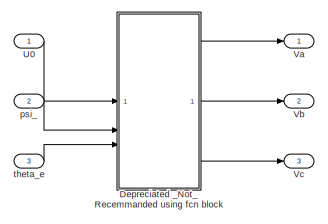
[diagram: root canvas - part 1/2, top left region]
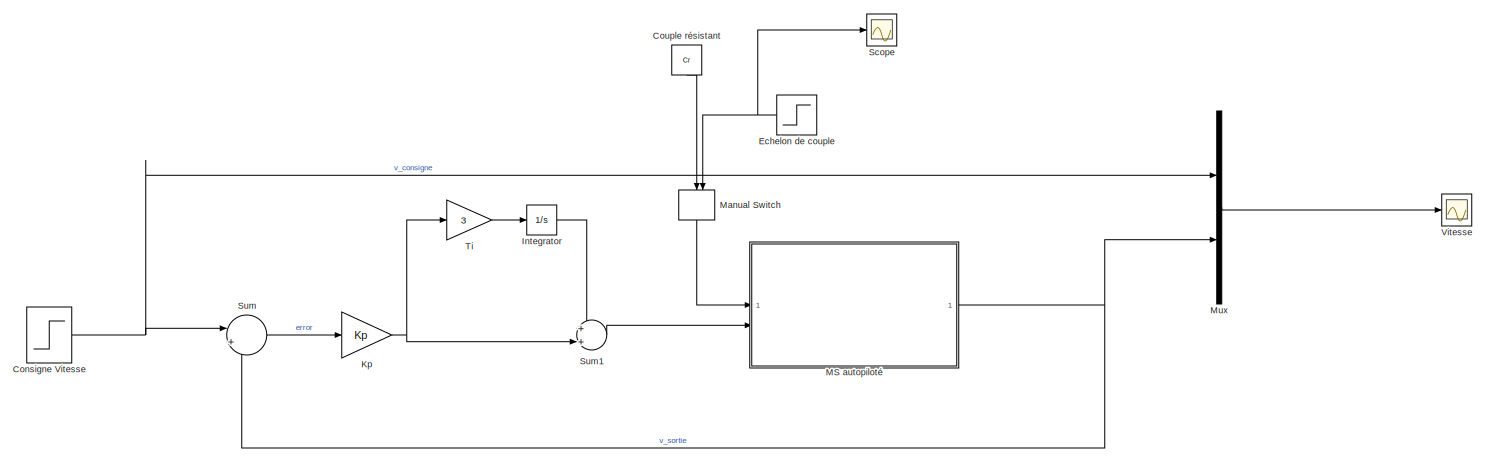
[diagram: root canvas - part 2/2, full width, bottom band]
MODEL mdl_564d1e37f7e7
KIND model
CONFIG AbsTol = auto
CONFIG EnableMultiTasking = off
CONFIG FixedStep = auto
CONFIG InitFcn = U0 = 220;\nphy = pi/4;\n\nR = 0.895;\nL0 = 12.16e-3;\nJ = 0.2;\nK = 0.9;\np = 3;\nphi_f = K/p;
CONFIG MaxStep = auto
CONFIG MinStep = auto
CONFIG RelTol = 1e-3
CONFIG SampleTimeConstraint = Unconstrained
CONFIG SolverName = VariableStepAuto
CONFIG StartFcn = TP3_config
CONFIG StartTime = 0.0
CONFIG StopTime = 5
BLOCK [Step] Consigne Vitesse
  After = 100
  SampleTime = 0
BLOCK [Constant] Couple résistant
  NameLocation = left
  Value = Cr
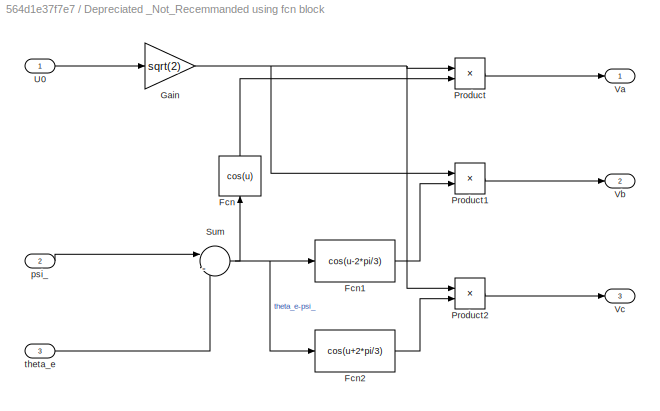
BLOCK [SubSystem] Depreciated _Not_Recemmanded using fcn block
BLOCK [Fcn] Depreciated _Not_Recemmanded using fcn block/Fcn
  Expr = cos(u)
  NameLocation = right
BLOCK [Fcn] Depreciated _Not_Recemmanded using fcn block/Fcn1
  Expr = cos(u-2*pi/3)
BLOCK [Fcn] Depreciated _Not_Recemmanded using fcn block/Fcn2
  Expr = cos(u+2*pi/3)
BLOCK [Gain] Depreciated _Not_Recemmanded using fcn block/Gain
  Gain = sqrt(2)
BLOCK [Product] Depreciated _Not_Recemmanded using fcn block/Product
BLOCK [Product] Depreciated _Not_Recemmanded using fcn block/Product1
BLOCK [Product] Depreciated _Not_Recemmanded using fcn block/Product2
BLOCK [Sum] Depreciated _Not_Recemmanded using fcn block/Sum
  Inputs = |-+
BLOCK [Inport] Depreciated _Not_Recemmanded using fcn block/U0
BLOCK [Outport] Depreciated _Not_Recemmanded using fcn block/Va
BLOCK [Outport] Depreciated _Not_Recemmanded using fcn block/Vb
  Port = 2
BLOCK [Outport] Depreciated _Not_Recemmanded using fcn block/Vc
  Port = 3
BLOCK [Inport] Depreciated _Not_Recemmanded using fcn block/psi_
  Port = 2
BLOCK [Inport] Depreciated _Not_Recemmanded using fcn block/theta_e
  Port = 3
BLOCK [Step] Echelon de couple
  After = 40
  NameLocation = top
  SampleTime = 0
  Time = 3
BLOCK [Integrator] Integrator
BLOCK [Gain] Kp
  Gain = Kp
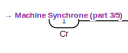
[diagram: MS autopiloté - part 1/5, top left region]
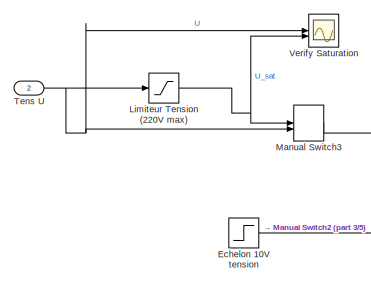
[diagram: MS autopiloté - part 2/5, middle left region]
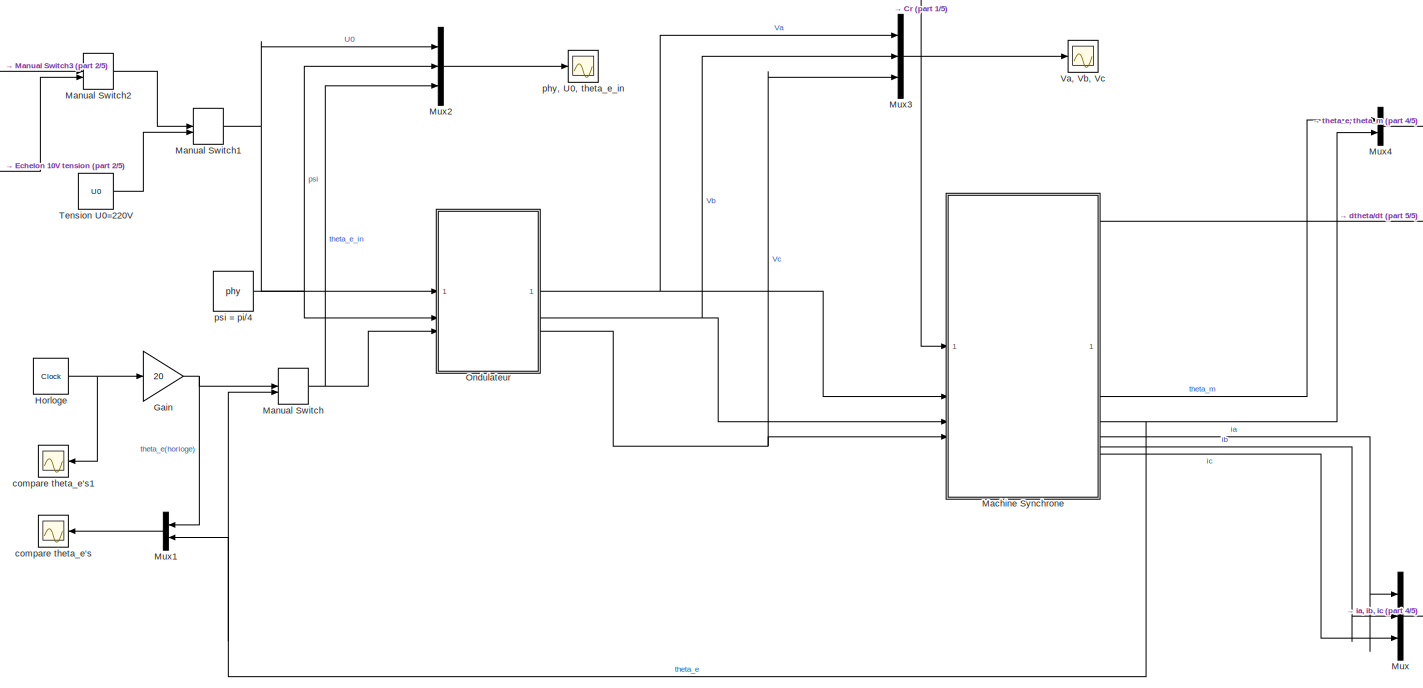
[diagram: MS autopiloté - part 3/5, center side, full height]
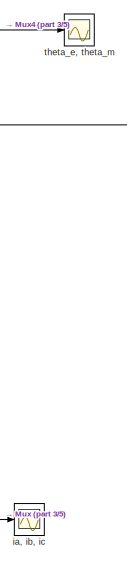
[diagram: MS autopiloté - part 4/5, middle right region]
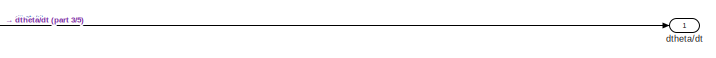
[diagram: MS autopiloté - part 5/5, middle right region]
BLOCK [SubSystem] MS autopiloté
BLOCK [Inport] MS autopiloté/Cr
BLOCK [Step] MS autopiloté/Echelon 10V tension
  After = 10
  SampleTime = 0
  Time = 0
BLOCK [Gain] MS autopiloté/Gain
  Gain = 20
BLOCK [Clock] MS autopiloté/Horloge
  DisplayTime = on
BLOCK [Saturate] MS autopiloté/Limiteur Tension (220V max)
  LowerLimit = -220
  UpperLimit = 220
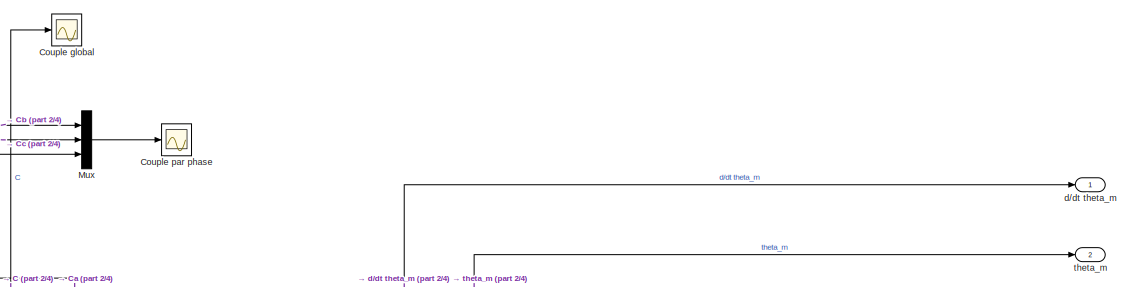
[diagram: MS autopiloté/Machine Synchrone - part 1/4, top right region]
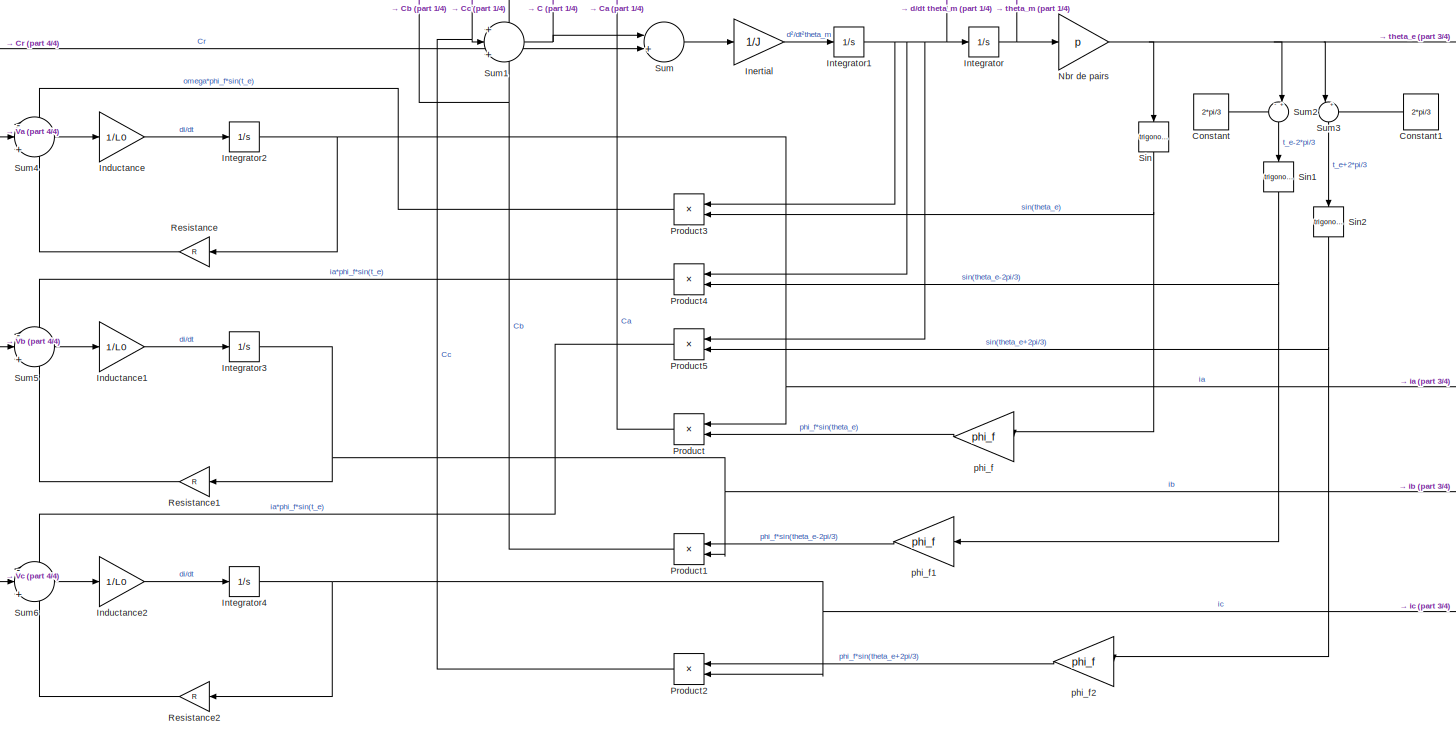
[diagram: MS autopiloté/Machine Synchrone - part 2/4, full width, middle band]
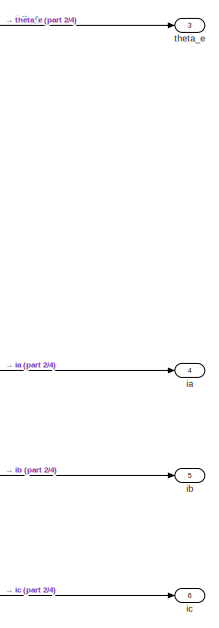
[diagram: MS autopiloté/Machine Synchrone - part 3/4, middle right region]
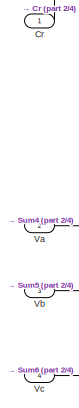
[diagram: MS autopiloté/Machine Synchrone - part 4/4, middle left region]
BLOCK [SubSystem] MS autopiloté/Machine Synchrone
BLOCK [Constant] MS autopiloté/Machine Synchrone/Constant
  Value = 2*pi/3
BLOCK [Constant] MS autopiloté/Machine Synchrone/Constant1
  NameLocation = top
  Value = 2*pi/3
BLOCK [Scope] MS autopiloté/Machine Synchrone/Couple global
  Floating = off
  NumInputPorts = 1
  ScopeSpecificationString = Simulink.scopes.TimeScopeBlockCfg('CurrentConfiguration', extmgr.ConfigurationSet(extmgr.Configuration('Core','General UI',true),extmgr.Configuration('Core','Source UI',true),extmgr.Configuration('Sources','WiredSimulink',true,'DataLoggingVariableName','ScopeData7'),extmgr.Configuration('Visuals','Time Domain',true,'SerializedDisplays',{struct('MinYLimReal','-0.0754','MaxYLimReal','0.67761','YLabe...<+1358ch>
BLOCK [Scope] MS autopiloté/Machine Synchrone/Couple par phase
  Floating = off
  NumInputPorts = 1
  ScopeSpecificationString = Simulink.scopes.TimeScopeBlockCfg('CurrentConfiguration', extmgr.ConfigurationSet(extmgr.Configuration('Core','General UI',true),extmgr.Configuration('Core','Source UI',true),extmgr.Configuration('Sources','WiredSimulink',true,'DataLoggingVariableName','ScopeData8'),extmgr.Configuration('Visuals','Time Domain',true,'SerializedDisplays',{struct('MinYLimReal','-0.03798','MaxYLimReal','0.33965','YLab...<+1396ch>
BLOCK [Inport] MS autopiloté/Machine Synchrone/Cr
BLOCK [Gain] MS autopiloté/Machine Synchrone/Inductance
  Gain = 1/L0
BLOCK [Gain] MS autopiloté/Machine Synchrone/Inductance1
  Gain = 1/L0
BLOCK [Gain] MS autopiloté/Machine Synchrone/Inductance2
  Gain = 1/L0
BLOCK [Gain] MS autopiloté/Machine Synchrone/Inertial
  Gain = 1/J
BLOCK [Integrator] MS autopiloté/Machine Synchrone/Integrator
BLOCK [Integrator] MS autopiloté/Machine Synchrone/Integrator1
BLOCK [Integrator] MS autopiloté/Machine Synchrone/Integrator2
BLOCK [Integrator] MS autopiloté/Machine Synchrone/Integrator3
BLOCK [Integrator] MS autopiloté/Machine Synchrone/Integrator4
BLOCK [Mux] MS autopiloté/Machine Synchrone/Mux
  DisplayOption = bar
  Inputs = 3
BLOCK [Gain] MS autopiloté/Machine Synchrone/Nbr de pairs
  Gain = p
BLOCK [Product] MS autopiloté/Machine Synchrone/Product
  NameLocation = top
BLOCK [Product] MS autopiloté/Machine Synchrone/Product1
  NameLocation = top
BLOCK [Product] MS autopiloté/Machine Synchrone/Product2
  NameLocation = top
BLOCK [Product] MS autopiloté/Machine Synchrone/Product3
  NameLocation = top
BLOCK [Product] MS autopiloté/Machine Synchrone/Product4
  NameLocation = top
BLOCK [Product] MS autopiloté/Machine Synchrone/Product5
  NameLocation = top
BLOCK [Gain] MS autopiloté/Machine Synchrone/Resistance
  Gain = R
  NameLocation = top
BLOCK [Gain] MS autopiloté/Machine Synchrone/Resistance1
  Gain = R
  NameLocation = top
BLOCK [Gain] MS autopiloté/Machine Synchrone/Resistance2
  Gain = R
  NameLocation = top
BLOCK [Trigonometry] MS autopiloté/Machine Synchrone/Sin
  NameLocation = left
BLOCK [Trigonometry] MS autopiloté/Machine Synchrone/Sin1
  NameLocation = left
BLOCK [Trigonometry] MS autopiloté/Machine Synchrone/Sin2
  NameLocation = left
BLOCK [Sum] MS autopiloté/Machine Synchrone/Sum
  Inputs = |+-
BLOCK [Sum] MS autopiloté/Machine Synchrone/Sum1
  Inputs = +|+|+
BLOCK [Sum] MS autopiloté/Machine Synchrone/Sum2
  Inputs = -+|
  NameLocation = left
BLOCK [Sum] MS autopiloté/Machine Synchrone/Sum3
  Inputs = |++
  NameLocation = left
BLOCK [Sum] MS autopiloté/Machine Synchrone/Sum4
  Inputs = -|+|-
BLOCK [Sum] MS autopiloté/Machine Synchrone/Sum5
  Inputs = -|+|-
BLOCK [Sum] MS autopiloté/Machine Synchrone/Sum6
  Inputs = -|+|-
BLOCK [Inport] MS autopiloté/Machine Synchrone/Va
  Port = 2
BLOCK [Inport] MS autopiloté/Machine Synchrone/Vb
  Port = 3
BLOCK [Inport] MS autopiloté/Machine Synchrone/Vc
  Port = 4
BLOCK [Outport] MS autopiloté/Machine Synchrone/d//dt theta_m
BLOCK [Outport] MS autopiloté/Machine Synchrone/ia
  Port = 4
BLOCK [Outport] MS autopiloté/Machine Synchrone/ib
  Port = 5
BLOCK [Outport] MS autopiloté/Machine Synchrone/ic
  Port = 6
BLOCK [Gain] MS autopiloté/Machine Synchrone/phi_f
  Gain = phi_f
  NameLocation = top
BLOCK [Gain] MS autopiloté/Machine Synchrone/phi_f1
  Gain = phi_f
  NameLocation = top
BLOCK [Gain] MS autopiloté/Machine Synchrone/phi_f2
  Gain = phi_f
  NameLocation = top
BLOCK [Outport] MS autopiloté/Machine Synchrone/theta_e
  Port = 3
BLOCK [Outport] MS autopiloté/Machine Synchrone/theta_m
  Port = 2
BLOCK [ManualSwitch] MS autopiloté/Manual Switch
  CurrentSetting = 0
BLOCK [ManualSwitch] MS autopiloté/Manual Switch1
BLOCK [ManualSwitch] MS autopiloté/Manual Switch2
BLOCK [ManualSwitch] MS autopiloté/Manual Switch3
  CurrentSetting = 0
BLOCK [Mux] MS autopiloté/Mux
  DisplayOption = bar
  Inputs = 3
BLOCK [Mux] MS autopiloté/Mux1
  DisplayOption = bar
  Inputs = 2
  NameLocation = top
BLOCK [Mux] MS autopiloté/Mux2
  DisplayOption = bar
  Inputs = 3
BLOCK [Mux] MS autopiloté/Mux3
  DisplayOption = bar
  Inputs = 3
BLOCK [Mux] MS autopiloté/Mux4
  DisplayOption = bar
  Inputs = 2
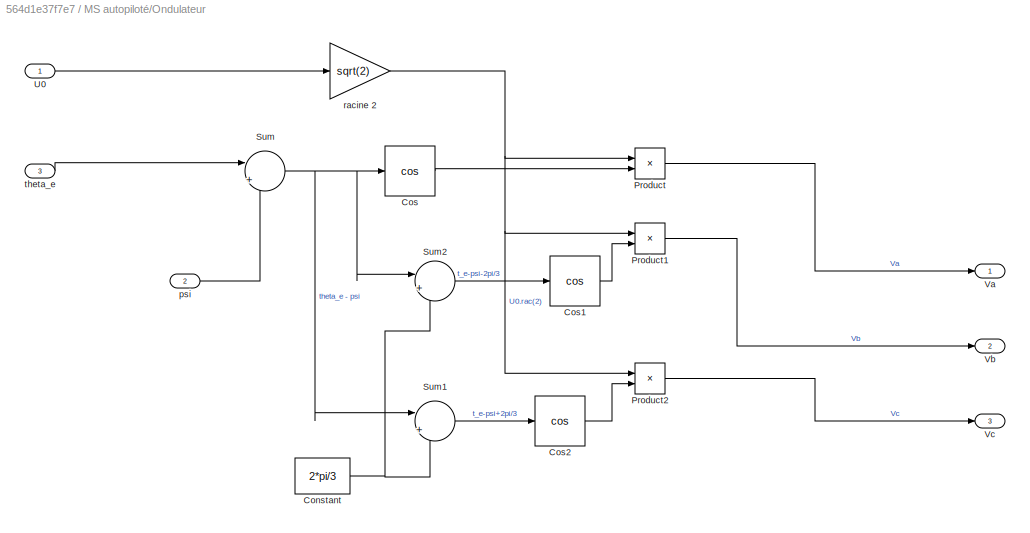
BLOCK [SubSystem] MS autopiloté/Ondulateur 
BLOCK [Constant] MS autopiloté/Ondulateur /Constant
  Value = 2*pi/3
BLOCK [Trigonometry] MS autopiloté/Ondulateur /Cos
  Operator = cos
BLOCK [Trigonometry] MS autopiloté/Ondulateur /Cos1
  Operator = cos
BLOCK [Trigonometry] MS autopiloté/Ondulateur /Cos2
  Operator = cos
BLOCK [Product] MS autopiloté/Ondulateur /Product
BLOCK [Product] MS autopiloté/Ondulateur /Product1
BLOCK [Product] MS autopiloté/Ondulateur /Product2
BLOCK [Sum] MS autopiloté/Ondulateur /Sum
  Inputs = |+-
BLOCK [Sum] MS autopiloté/Ondulateur /Sum1
  Inputs = |++
BLOCK [Sum] MS autopiloté/Ondulateur /Sum2
  Inputs = |+-
BLOCK [Inport] MS autopiloté/Ondulateur /U0
BLOCK [Outport] MS autopiloté/Ondulateur /Va
BLOCK [Outport] MS autopiloté/Ondulateur /Vb
  Port = 2
BLOCK [Outport] MS autopiloté/Ondulateur /Vc
  Port = 3
BLOCK [Inport] MS autopiloté/Ondulateur /psi
  Port = 2
BLOCK [Gain] MS autopiloté/Ondulateur /racine 2
  Gain = sqrt(2)
BLOCK [Inport] MS autopiloté/Ondulateur /theta_e
  Port = 3
BLOCK [Inport] MS autopiloté/Tens U
  Port = 2
BLOCK [Constant] MS autopiloté/Tension U0=220V
  Value = U0
BLOCK [Scope] MS autopiloté/Va, Vb, Vc
  Floating = off
  NumInputPorts = 1
  ScopeSpecificationString = Simulink.scopes.TimeScopeBlockCfg('CurrentConfiguration', extmgr.ConfigurationSet(extmgr.Configuration('Core','General UI',true),extmgr.Configuration('Core','Source UI',true),extmgr.Configuration('Sources','WiredSimulink',true,'DataLoggingVariableName','ScopeData3'),extmgr.Configuration('Visuals','Time Domain',true,'SerializedDisplays',{struct('MinYLimReal','-379.38569','MaxYLimReal','386.1047','Y...<+1404ch>
BLOCK [Scope] MS autopiloté/Verify Saturation
  Floating = off
  NumInputPorts = 2
  ScopeSpecificationString = Simulink.scopes.TimeScopeBlockCfg('CurrentConfiguration', extmgr.ConfigurationSet(extmgr.Configuration('Core','General UI',true),extmgr.Configuration('Core','Source UI',true),extmgr.Configuration('Sources','WiredSimulink',true,'DataLoggingVariableName','ScopeData2'),extmgr.Configuration('Visuals','Time Domain',true,'SerializedDisplays',{struct('MinYLimReal','-276.69346','MaxYLimReal','2341.83941',...<+1413ch>
BLOCK [Scope] MS autopiloté/compare theta_e's
  Floating = off
  NameLocation = top
  NumInputPorts = 1
  ScopeSpecificationString = Simulink.scopes.TimeScopeBlockCfg('CurrentConfiguration', extmgr.ConfigurationSet(extmgr.Configuration('Core','General UI',true),extmgr.Configuration('Core','Source UI',true),extmgr.Configuration('Sources','WiredSimulink',true,'DataLoggingVariableName','ScopeData1'),extmgr.Configuration('Visuals','Time Domain',true,'SerializedDisplays',{struct('MinYLimReal','-130.76272','MaxYLimReal','1125.6403','...<+1470ch>
BLOCK [Scope] MS autopiloté/compare theta_e's1
  Floating = off
  NameLocation = top
  NumInputPorts = 1
  ScopeSpecificationString = Simulink.scopes.TimeScopeBlockCfg('CurrentConfiguration', extmgr.ConfigurationSet(extmgr.Configuration('Core','General UI',true),extmgr.Configuration('Core','Source UI',true),extmgr.Configuration('Sources','WiredSimulink',true,'DataLoggingVariableName','ScopeData6'),extmgr.Configuration('Visuals','Time Domain',true,'SerializedDisplays',{struct('MinYLimReal','-0.5','MaxYLimReal','4.5','YLabelReal',...<+1413ch>
BLOCK [Outport] MS autopiloté/dtheta//dt
BLOCK [Scope] MS autopiloté/ia, ib, ic
  Floating = off
  NumInputPorts = 1
  ScopeSpecificationString = Simulink.scopes.TimeScopeBlockCfg('CurrentConfiguration', extmgr.ConfigurationSet(extmgr.Configuration('Core','General UI',true),extmgr.Configuration('Core','Source UI',true),extmgr.Configuration('Sources','WiredSimulink',true),extmgr.Configuration('Visuals','Time Domain',true,'SerializedDisplays',{struct('MinYLimReal','-1.44983','MaxYLimReal','1.44804','YLabelReal','','MinYLimMag','0.00000','MaxY...<+1355ch>
BLOCK [Scope] MS autopiloté/phy, U0, theta_e_in
  Floating = off
  NumInputPorts = 1
  ScopeSpecificationString = Simulink.scopes.TimeScopeBlockCfg('CurrentConfiguration', extmgr.ConfigurationSet(extmgr.Configuration('Core','General UI',true),extmgr.Configuration('Core','Source UI',true),extmgr.Configuration('Sources','WiredSimulink',true,'DataLoggingVariableName','ScopeData2'),extmgr.Configuration('Visuals','Time Domain',true,'SerializedDisplays',{struct('MinYLimReal','-66.36005','MaxYLimReal','273.80517','Y...<+1461ch>
BLOCK [Constant] MS autopiloté/psi = pi//4
  Value = phy
BLOCK [Scope] MS autopiloté/theta_e, theta_m
  Floating = off
  NumInputPorts = 1
  ScopeSpecificationString = Simulink.scopes.TimeScopeBlockCfg('CurrentConfiguration', extmgr.ConfigurationSet(extmgr.Configuration('Core','General UI',true),extmgr.Configuration('Core','Source UI',true),extmgr.Configuration('Sources','WiredSimulink',true,'DataLoggingVariableName','ScopeData4'),extmgr.Configuration('Visuals','Time Domain',true,'SerializedDisplays',{struct('MinYLimReal','-26.74813','MaxYLimReal','240.73318','Y...<+1483ch>
BLOCK [ManualSwitch] Manual Switch
  CurrentSetting = 0
  NameLocation = left
BLOCK [Mux] Mux
  DisplayOption = bar
  Inputs = 2
BLOCK [Scope] Scope
  Floating = off
  NumInputPorts = 1
  ScopeSpecificationString = Simulink.scopes.TimeScopeBlockCfg('CurrentConfiguration', extmgr.ConfigurationSet(extmgr.Configuration('Core','General UI',true),extmgr.Configuration('Core','Source UI',true),extmgr.Configuration('Sources','WiredSimulink',true,'DataLoggingVariableName','ScopeData1'),extmgr.Configuration('Visuals','Time Domain',true,'SerializedDisplays',{struct('MinYLimReal','-3.875','MaxYLimReal','44.875','YLabelR...<+1369ch>
BLOCK [Sum] Sum
  Inputs = |+-
BLOCK [Sum] Sum1
  Inputs = ++|
BLOCK [Gain] Ti
  Gain = 3
BLOCK [Inport] U0
BLOCK [Outport] Va
BLOCK [Outport] Vb
  Port = 2
BLOCK [Outport] Vc
  Port = 3
BLOCK [Scope] Vitesse
  Floating = off
  NumInputPorts = 1
  ScopeSpecificationString = Simulink.scopes.TimeScopeBlockCfg('CurrentConfiguration', extmgr.ConfigurationSet(extmgr.Configuration('Core','General UI',true),extmgr.Configuration('Core','Source UI',true),extmgr.Configuration('Sources','WiredSimulink',true,'DataLoggingVariableName','ScopeData1'),extmgr.Configuration('Visuals','Time Domain',true,'SerializedDisplays',{struct('MinYLimReal','-15.95027','MaxYLimReal','143.55245','Y...<+1488ch>
BLOCK [Inport] psi_
  Port = 2
BLOCK [Inport] theta_e
  Port = 3
NET Consigne Vitesse:1 -> Mux:1, Sum:1
LINE Couple résistant:1 -> Manual Switch:1
LINE Depreciated _Not_Recemmanded using fcn block/Fcn1:1 -> Depreciated _Not_Recemmanded using fcn block/Product1:2
LINE Depreciated _Not_Recemmanded using fcn block/Fcn2:1 -> Depreciated _Not_Recemmanded using fcn block/Product2:2
LINE Depreciated _Not_Recemmanded using fcn block/Fcn:1 -> Depreciated _Not_Recemmanded using fcn block/Product:2
NET Depreciated _Not_Recemmanded using fcn block/Gain:1 -> Depreciated _Not_Recemmanded using fcn block/Product1:1, Depreciated _Not_Recemmanded using fcn block/Product2:1, Depreciated _Not_Recemmanded using fcn block/Product:1
LINE Depreciated _Not_Recemmanded using fcn block/Product1:1 -> Depreciated _Not_Recemmanded using fcn block/Vb:1
LINE Depreciated _Not_Recemmanded using fcn block/Product2:1 -> Depreciated _Not_Recemmanded using fcn block/Vc:1
LINE Depreciated _Not_Recemmanded using fcn block/Product:1 -> Depreciated _Not_Recemmanded using fcn block/Va:1
NET Depreciated _Not_Recemmanded using fcn block/Sum:1 -> Depreciated _Not_Recemmanded using fcn block/Fcn1:1, Depreciated _Not_Recemmanded using fcn block/Fcn2:1, Depreciated _Not_Recemmanded using fcn block/Fcn:1
LINE Depreciated _Not_Recemmanded using fcn block/U0:1 -> Depreciated _Not_Recemmanded using fcn block/Gain:1
LINE Depreciated _Not_Recemmanded using fcn block/psi_:1 -> Depreciated _Not_Recemmanded using fcn block/Sum:1
LINE Depreciated _Not_Recemmanded using fcn block/theta_e:1 -> Depreciated _Not_Recemmanded using fcn block/Sum:2
LINE Depreciated _Not_Recemmanded using fcn block:1 -> Va:1
LINE Depreciated _Not_Recemmanded using fcn block:2 -> Vb:1
LINE Depreciated _Not_Recemmanded using fcn block:3 -> Vc:1
NET Echelon de couple:1 -> Manual Switch:2, Scope:1
LINE Integrator:1 -> Sum1:1
NET Kp:1 -> Sum1:2, Ti:1
LINE MS autopiloté/Cr:1 -> MS autopiloté/Machine Synchrone:1
LINE MS autopiloté/Echelon 10V tension:1 -> MS autopiloté/Manual Switch2:2
NET MS autopiloté/Gain:1 -> MS autopiloté/Manual Switch:1, MS autopiloté/Mux1:1
NET MS autopiloté/Horloge:1 -> MS autopiloté/Gain:1, MS autopiloté/compare theta_e's1:1
NET MS autopiloté/Limiteur Tension (220V max):1 -> MS autopiloté/Manual Switch3:1, MS autopiloté/Verify Saturation:2
LINE MS autopiloté/Machine Synchrone/Constant1:1 -> MS autopiloté/Machine Synchrone/Sum3:2
LINE MS autopiloté/Machine Synchrone/Constant:1 -> MS autopiloté/Machine Synchrone/Sum2:1
LINE MS autopiloté/Machine Synchrone/Cr:1 -> MS autopiloté/Machine Synchrone/Sum:2
LINE MS autopiloté/Machine Synchrone/Inductance1:1 -> MS autopiloté/Machine Synchrone/Integrator3:1
LINE MS autopiloté/Machine Synchrone/Inductance2:1 -> MS autopiloté/Machine Synchrone/Integrator4:1
LINE MS autopiloté/Machine Synchrone/Inductance:1 -> MS autopiloté/Machine Synchrone/Integrator2:1
LINE MS autopiloté/Machine Synchrone/Inertial:1 -> MS autopiloté/Machine Synchrone/Integrator1:1
NET MS autopiloté/Machine Synchrone/Integrator1:1 -> MS autopiloté/Machine Synchrone/Integrator:1, MS autopiloté/Machine Synchrone/Product3:1, MS autopiloté/Machine Synchrone/Product4:1, MS autopiloté/Machine Synchrone/Product5:1, MS autopiloté/Machine Synchrone/d//dt theta_m:1
NET MS autopiloté/Machine Synchrone/Integrator2:1 -> MS autopiloté/Machine Synchrone/Product:1, MS autopiloté/Machine Synchrone/Resistance:1, MS autopiloté/Machine Synchrone/ia:1
NET MS autopiloté/Machine Synchrone/Integrator3:1 -> MS autopiloté/Machine Synchrone/Product1:2, MS autopiloté/Machine Synchrone/Resistance1:1, MS autopiloté/Machine Synchrone/ib:1
NET MS autopiloté/Machine Synchrone/Integrator4:1 -> MS autopiloté/Machine Synchrone/Product2:2, MS autopiloté/Machine Synchrone/Resistance2:1, MS autopiloté/Machine Synchrone/ic:1
NET MS autopiloté/Machine Synchrone/Integrator:1 -> MS autopiloté/Machine Synchrone/Nbr de pairs:1, MS autopiloté/Machine Synchrone/theta_m:1
LINE MS autopiloté/Machine Synchrone/Mux:1 -> MS autopiloté/Machine Synchrone/Couple par phase:1
NET MS autopiloté/Machine Synchrone/Nbr de pairs:1 -> MS autopiloté/Machine Synchrone/Sin:1, MS autopiloté/Machine Synchrone/Sum2:2, MS autopiloté/Machine Synchrone/Sum3:1, MS autopiloté/Machine Synchrone/theta_e:1
NET MS autopiloté/Machine Synchrone/Product1:1 -> MS autopiloté/Machine Synchrone/Mux:1, MS autopiloté/Machine Synchrone/Sum1:3
NET MS autopiloté/Machine Synchrone/Product2:1 -> MS autopiloté/Machine Synchrone/Mux:2, MS autopiloté/Machine Synchrone/Sum1:2
LINE MS autopiloté/Machine Synchrone/Product3:1 -> MS autopiloté/Machine Synchrone/Sum4:1
LINE MS autopiloté/Machine Synchrone/Product4:1 -> MS autopiloté/Machine Synchrone/Sum5:1
LINE MS autopiloté/Machine Synchrone/Product5:1 -> MS autopiloté/Machine Synchrone/Sum6:1
NET MS autopiloté/Machine Synchrone/Product:1 -> MS autopiloté/Machine Synchrone/Mux:3, MS autopiloté/Machine Synchrone/Sum1:1
LINE MS autopiloté/Machine Synchrone/Resistance1:1 -> MS autopiloté/Machine Synchrone/Sum5:3
LINE MS autopiloté/Machine Synchrone/Resistance2:1 -> MS autopiloté/Machine Synchrone/Sum6:3
LINE MS autopiloté/Machine Synchrone/Resistance:1 -> MS autopiloté/Machine Synchrone/Sum4:3
NET MS autopiloté/Machine Synchrone/Sin1:1 -> MS autopiloté/Machine Synchrone/Product4:2, MS autopiloté/Machine Synchrone/phi_f1:1
NET MS autopiloté/Machine Synchrone/Sin2:1 -> MS autopiloté/Machine Synchrone/Product5:2, MS autopiloté/Machine Synchrone/phi_f2:1
NET MS autopiloté/Machine Synchrone/Sin:1 -> MS autopiloté/Machine Synchrone/Product3:2, MS autopiloté/Machine Synchrone/phi_f:1
NET MS autopiloté/Machine Synchrone/Sum1:1 -> MS autopiloté/Machine Synchrone/Couple global:1, MS autopiloté/Machine Synchrone/Sum:1
LINE MS autopiloté/Machine Synchrone/Sum2:1 -> MS autopiloté/Machine Synchrone/Sin1:1
LINE MS autopiloté/Machine Synchrone/Sum3:1 -> MS autopiloté/Machine Synchrone/Sin2:1
LINE MS autopiloté/Machine Synchrone/Sum4:1 -> MS autopiloté/Machine Synchrone/Inductance:1
LINE MS autopiloté/Machine Synchrone/Sum5:1 -> MS autopiloté/Machine Synchrone/Inductance1:1
LINE MS autopiloté/Machine Synchrone/Sum6:1 -> MS autopiloté/Machine Synchrone/Inductance2:1
LINE MS autopiloté/Machine Synchrone/Sum:1 -> MS autopiloté/Machine Synchrone/Inertial:1
LINE MS autopiloté/Machine Synchrone/Va:1 -> MS autopiloté/Machine Synchrone/Sum4:2
LINE MS autopiloté/Machine Synchrone/Vb:1 -> MS autopiloté/Machine Synchrone/Sum5:2
LINE MS autopiloté/Machine Synchrone/Vc:1 -> MS autopiloté/Machine Synchrone/Sum6:2
LINE MS autopiloté/Machine Synchrone/phi_f1:1 -> MS autopiloté/Machine Synchrone/Product1:1
LINE MS autopiloté/Machine Synchrone/phi_f2:1 -> MS autopiloté/Machine Synchrone/Product2:1
LINE MS autopiloté/Machine Synchrone/phi_f:1 -> MS autopiloté/Machine Synchrone/Product:2
LINE MS autopiloté/Machine Synchrone:1 -> MS autopiloté/dtheta//dt:1
LINE MS autopiloté/Machine Synchrone:2 -> MS autopiloté/Mux4:1
NET MS autopiloté/Machine Synchrone:3 -> MS autopiloté/Manual Switch:2, MS autopiloté/Mux1:2, MS autopiloté/Mux4:2
LINE MS autopiloté/Machine Synchrone:4 -> MS autopiloté/Mux:1
LINE MS autopiloté/Machine Synchrone:5 -> MS autopiloté/Mux:2
LINE MS autopiloté/Machine Synchrone:6 -> MS autopiloté/Mux:3
NET MS autopiloté/Manual Switch1:1 -> MS autopiloté/Mux2:1, MS autopiloté/Ondulateur :1
LINE MS autopiloté/Manual Switch2:1 -> MS autopiloté/Manual Switch1:1
LINE MS autopiloté/Manual Switch3:1 -> MS autopiloté/Manual Switch2:1
NET MS autopiloté/Manual Switch:1 -> MS autopiloté/Mux2:3, MS autopiloté/Ondulateur :3
LINE MS autopiloté/Mux1:1 -> MS autopiloté/compare theta_e's:1
LINE MS autopiloté/Mux2:1 -> MS autopiloté/phy, U0, theta_e_in:1
LINE MS autopiloté/Mux3:1 -> MS autopiloté/Va, Vb, Vc:1
LINE MS autopiloté/Mux4:1 -> MS autopiloté/theta_e, theta_m:1
LINE MS autopiloté/Mux:1 -> MS autopiloté/ia, ib, ic:1
NET MS autopiloté/Ondulateur /Constant:1 -> MS autopiloté/Ondulateur /Sum1:2, MS autopiloté/Ondulateur /Sum2:2
LINE MS autopiloté/Ondulateur /Cos1:1 -> MS autopiloté/Ondulateur /Product1:2
LINE MS autopiloté/Ondulateur /Cos2:1 -> MS autopiloté/Ondulateur /Product2:2
LINE MS autopiloté/Ondulateur /Cos:1 -> MS autopiloté/Ondulateur /Product:2
LINE MS autopiloté/Ondulateur /Product1:1 -> MS autopiloté/Ondulateur /Vb:1
LINE MS autopiloté/Ondulateur /Product2:1 -> MS autopiloté/Ondulateur /Vc:1
LINE MS autopiloté/Ondulateur /Product:1 -> MS autopiloté/Ondulateur /Va:1
LINE MS autopiloté/Ondulateur /Sum1:1 -> MS autopiloté/Ondulateur /Cos2:1
LINE MS autopiloté/Ondulateur /Sum2:1 -> MS autopiloté/Ondulateur /Cos1:1
NET MS autopiloté/Ondulateur /Sum:1 -> MS autopiloté/Ondulateur /Cos:1, MS autopiloté/Ondulateur /Sum1:1, MS autopiloté/Ondulateur /Sum2:1
LINE MS autopiloté/Ondulateur /U0:1 -> MS autopiloté/Ondulateur /racine 2:1
LINE MS autopiloté/Ondulateur /psi:1 -> MS autopiloté/Ondulateur /Sum:2
NET MS autopiloté/Ondulateur /racine 2:1 -> MS autopiloté/Ondulateur /Product1:1, MS autopiloté/Ondulateur /Product2:1, MS autopiloté/Ondulateur /Product:1
LINE MS autopiloté/Ondulateur /theta_e:1 -> MS autopiloté/Ondulateur /Sum:1
NET MS autopiloté/Ondulateur :1 -> MS autopiloté/Machine Synchrone:2, MS autopiloté/Mux3:1
NET MS autopiloté/Ondulateur :2 -> MS autopiloté/Machine Synchrone:3, MS autopiloté/Mux3:2
NET MS autopiloté/Ondulateur :3 -> MS autopiloté/Machine Synchrone:4, MS autopiloté/Mux3:3
NET MS autopiloté/Tens U:1 -> MS autopiloté/Limiteur Tension (220V max):1, MS autopiloté/Manual Switch3:2, MS autopiloté/Verify Saturation:1
LINE MS autopiloté/Tension U0=220V:1 -> MS autopiloté/Manual Switch1:2
NET MS autopiloté/psi = pi//4:1 -> MS autopiloté/Mux2:2, MS autopiloté/Ondulateur :2
NET MS autopiloté:1 -> Mux:2, Sum:2
LINE Manual Switch:1 -> MS autopiloté:1
LINE Mux:1 -> Vitesse:1
LINE Sum1:1 -> MS autopiloté:2
LINE Sum:1 -> Kp:1
LINE Ti:1 -> Integrator:1
LINE U0:1 -> Depreciated _Not_Recemmanded using fcn block:1
LINE psi_:1 -> Depreciated _Not_Recemmanded using fcn block:2
LINE theta_e:1 -> Depreciated _Not_Recemmanded using fcn block:3
note: NET lines group one-source signal fan-out (src -> all destinations, sorted); 1:1 wires keep LINE
